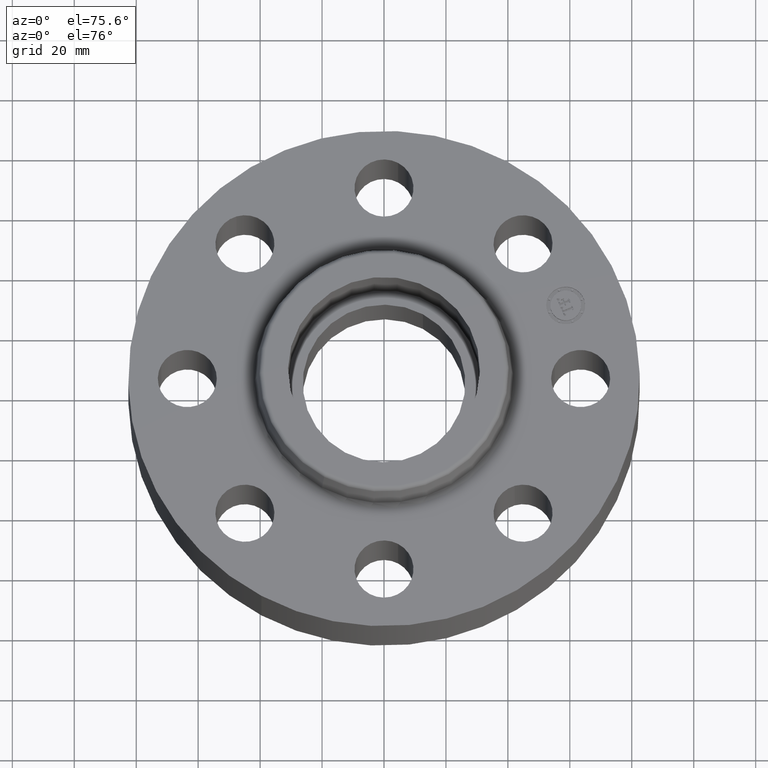
[diagram: clean part render]
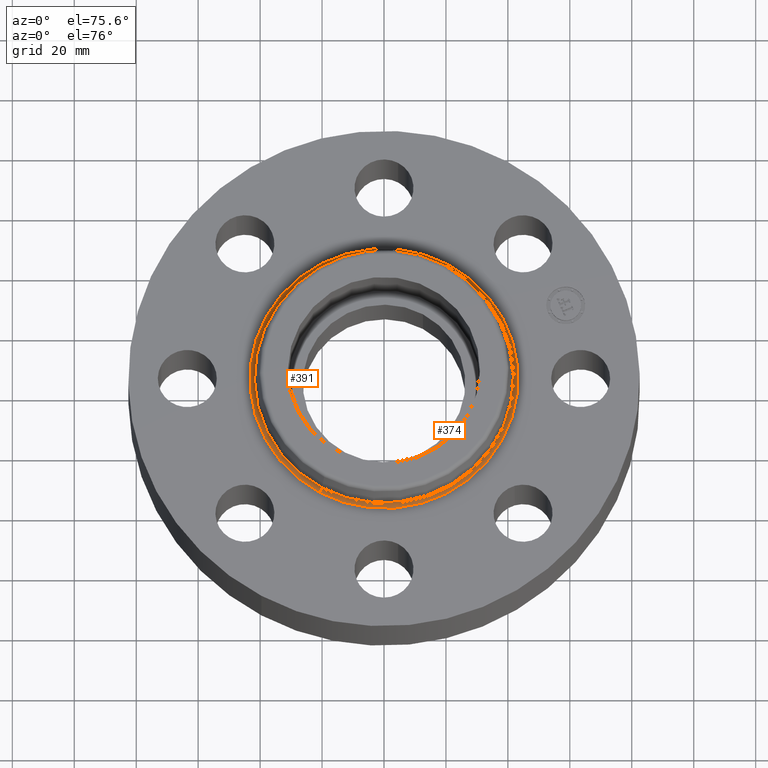
[diagram: same view with one multi-face feature highlighted, each face labeled with its STEP entity id]
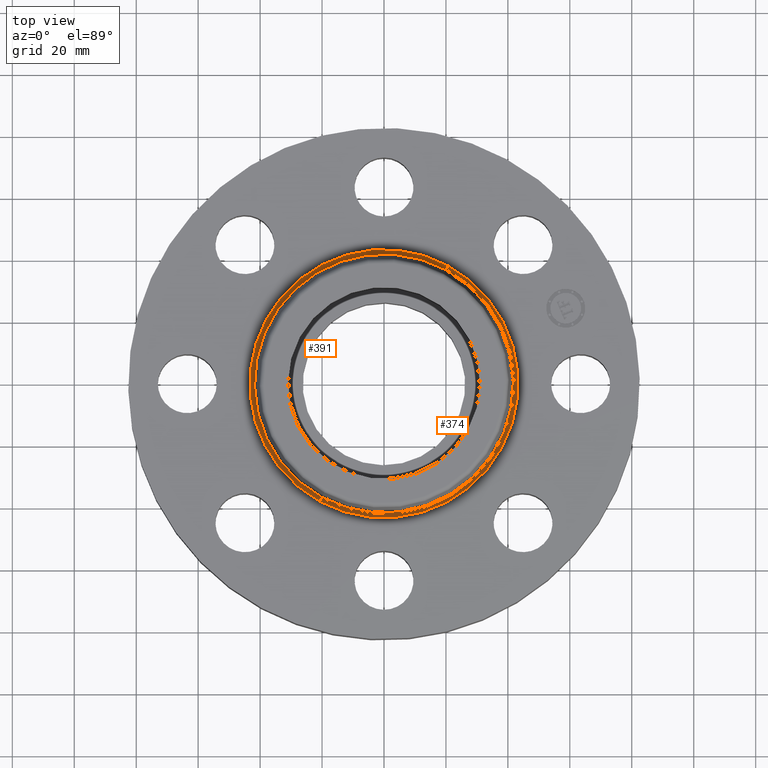
[diagram: same view with one multi-face feature highlighted, each face labeled with its STEP entity id]
A machine part, auxiliary view. The highlighted faces form ONE feature: a constant-radius fillet chain: 2 tangent blend faces with common blend radius 1.524 mm. The faces share edges in the B-rep.
A second angle (top view) of the same feature is appended — it is thin or edge-on in the first view.
Their STEP definitions:
[1] entity #391 (Torus):
#338=AXIS2_PLACEMENT_3D('Torus Axis2P3D',#335,#336,#337) ;
#351=AXIS2_PLACEMENT_3D('Circle Axis2P3D',#349,#350,$) ;
#365=AXIS2_PLACEMENT_3D('Circle Axis2P3D',#363,#364,$) ;
#377=AXIS2_PLACEMENT_3D('Circle Axis2P3D',#375,#376,$) ;
#382=AXIS2_PLACEMENT_3D('Circle Axis2P3D',#380,#381,$) ;
#335=CARTESIAN_POINT('Axis2P3D Location',(0.,0.,1.06)) ;
#344=CARTESIAN_POINT('Vertex',(0.81758641395,1.49658189218,1.)) ;
#346=CARTESIAN_POINT('Vertex',(-0.81758641395,-1.49658189218,1.)) ;
#349=CARTESIAN_POINT('Axis2P3D Location',(0.81758641395,1.49658189218,1.06)) ;
#353=CARTESIAN_POINT('Vertex',(0.789257894706,1.44472688552,1.04958110934)) ;
#360=CARTESIAN_POINT('Vertex',(-0.789257894706,-1.44472688552,1.04958110934)) ;
#363=CARTESIAN_POINT('Axis2P3D Location',(-0.81758641395,-1.49658189218,1.06)) ;
#375=CARTESIAN_POINT('Axis2P3D Location',(0.,0.,1.)) ;
#380=CARTESIAN_POINT('Axis2P3D Location',(0.,0.,1.04958110934)) ;
#336=DIRECTION('Axis2P3D Direction',(0.,0.,-0.0393700787402)) ;
#337=DIRECTION('Axis2P3D XDirection',(-0.0188750212049,-0.0345504945626,0.)) ;
#350=DIRECTION('Axis2P3D Direction',(-0.0345504945626,0.0188750212049,0.)) ;
#364=DIRECTION('Axis2P3D Direction',(0.0345504945626,-0.0188750212049,0.)) ;
#376=DIRECTION('Axis2P3D Direction',(0.,0.,-0.0393700787402)) ;
#381=DIRECTION('Axis2P3D Direction',(0.,0.,-0.0393700787402)) ;
#386=ORIENTED_EDGE('',*,*,#379,.F.) ;
#387=ORIENTED_EDGE('',*,*,#367,.T.) ;
#388=ORIENTED_EDGE('',*,*,#384,.T.) ;
#389=ORIENTED_EDGE('',*,*,#355,.F.) ;
#391=ADVANCED_FACE('PartBody',(#390),#339,.F.) ;
#352=CIRCLE('generated circle',#351,0.0600000000002) ;
#366=CIRCLE('generated circle',#365,0.0600000000002) ;
#378=CIRCLE('generated circle',#377,1.70534597788) ;
#383=CIRCLE('generated circle',#382,1.6462575127) ;
#339=TOROIDAL_SURFACE('homeo Torus',#338,1.70534597788,0.0600000000002) ;
#355=EDGE_CURVE('',#345,#354,#352,.T.) ;
#367=EDGE_CURVE('',#347,#361,#366,.T.) ;
#379=EDGE_CURVE('',#347,#345,#378,.T.) ;
#384=EDGE_CURVE('',#361,#354,#383,.T.) ;
#385=EDGE_LOOP('',(#386,#387,#388,#389)) ;
#390=FACE_OUTER_BOUND('',#385,.T.) ;
#345=VERTEX_POINT('',#344) ;
#347=VERTEX_POINT('',#346) ;
#354=VERTEX_POINT('',#353) ;
#361=VERTEX_POINT('',#360) ;
[2] entity #374 (Torus):
#338=AXIS2_PLACEMENT_3D('Torus Axis2P3D',#335,#336,#337) ;
#342=AXIS2_PLACEMENT_3D('Circle Axis2P3D',#340,#341,$) ;
#351=AXIS2_PLACEMENT_3D('Circle Axis2P3D',#349,#350,$) ;
#358=AXIS2_PLACEMENT_3D('Circle Axis2P3D',#356,#357,$) ;
#365=AXIS2_PLACEMENT_3D('Circle Axis2P3D',#363,#364,$) ;
#335=CARTESIAN_POINT('Axis2P3D Location',(0.,0.,1.06)) ;
#340=CARTESIAN_POINT('Axis2P3D Location',(0.,0.,1.)) ;
#344=CARTESIAN_POINT('Vertex',(0.81758641395,1.49658189218,1.)) ;
#346=CARTESIAN_POINT('Vertex',(-0.81758641395,-1.49658189218,1.)) ;
#349=CARTESIAN_POINT('Axis2P3D Location',(0.81758641395,1.49658189218,1.06)) ;
#353=CARTESIAN_POINT('Vertex',(0.789257894706,1.44472688552,1.04958110934)) ;
#356=CARTESIAN_POINT('Axis2P3D Location',(0.,0.,1.04958110934)) ;
#360=CARTESIAN_POINT('Vertex',(-0.789257894706,-1.44472688552,1.04958110934)) ;
#363=CARTESIAN_POINT('Axis2P3D Location',(-0.81758641395,-1.49658189218,1.06)) ;
#336=DIRECTION('Axis2P3D Direction',(0.,0.,-0.0393700787402)) ;
#337=DIRECTION('Axis2P3D XDirection',(-0.0188750212049,-0.0345504945626,0.)) ;
#341=DIRECTION('Axis2P3D Direction',(0.,0.,-0.0393700787402)) ;
#350=DIRECTION('Axis2P3D Direction',(-0.0345504945626,0.0188750212049,0.)) ;
#357=DIRECTION('Axis2P3D Direction',(0.,0.,-0.0393700787402)) ;
#364=DIRECTION('Axis2P3D Direction',(0.0345504945626,-0.0188750212049,0.)) ;
#369=ORIENTED_EDGE('',*,*,#348,.F.) ;
#370=ORIENTED_EDGE('',*,*,#355,.T.) ;
#371=ORIENTED_EDGE('',*,*,#362,.T.) ;
#372=ORIENTED_EDGE('',*,*,#367,.F.) ;
#374=ADVANCED_FACE('PartBody',(#373),#339,.F.) ;
#343=CIRCLE('generated circle',#342,1.70534597788) ;
#352=CIRCLE('generated circle',#351,0.0600000000002) ;
#359=CIRCLE('generated circle',#358,1.6462575127) ;
#366=CIRCLE('generated circle',#365,0.0600000000002) ;
#339=TOROIDAL_SURFACE('homeo Torus',#338,1.70534597788,0.0600000000002) ;
#348=EDGE_CURVE('',#345,#347,#343,.T.) ;
#355=EDGE_CURVE('',#345,#354,#352,.T.) ;
#362=EDGE_CURVE('',#354,#361,#359,.T.) ;
#367=EDGE_CURVE('',#347,#361,#366,.T.) ;
#368=EDGE_LOOP('',(#369,#370,#371,#372)) ;
#373=FACE_OUTER_BOUND('',#368,.T.) ;
#345=VERTEX_POINT('',#344) ;
#347=VERTEX_POINT('',#346) ;
#354=VERTEX_POINT('',#353) ;
#361=VERTEX_POINT('',#360) ;